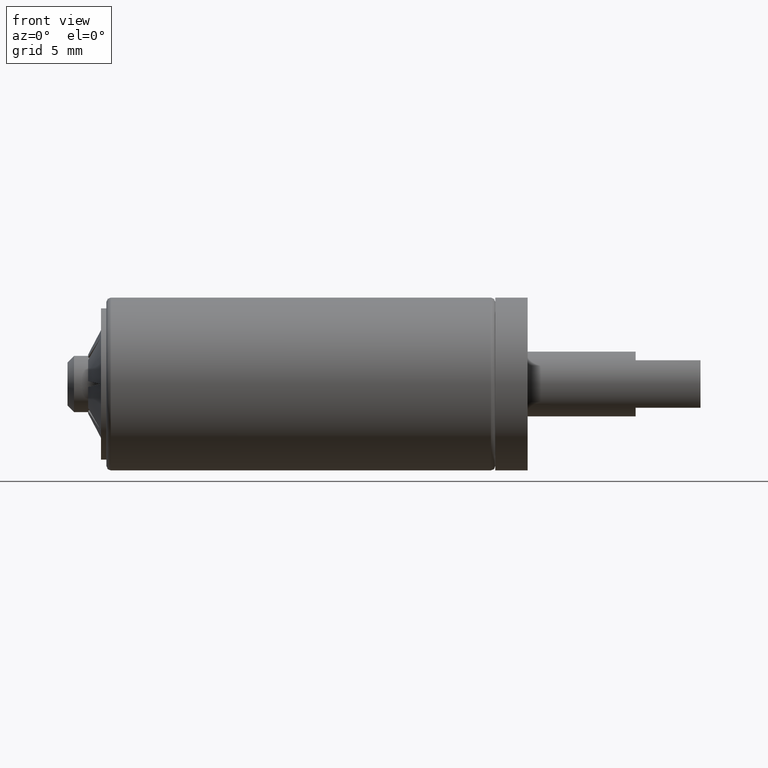
[diagram: clean part render]
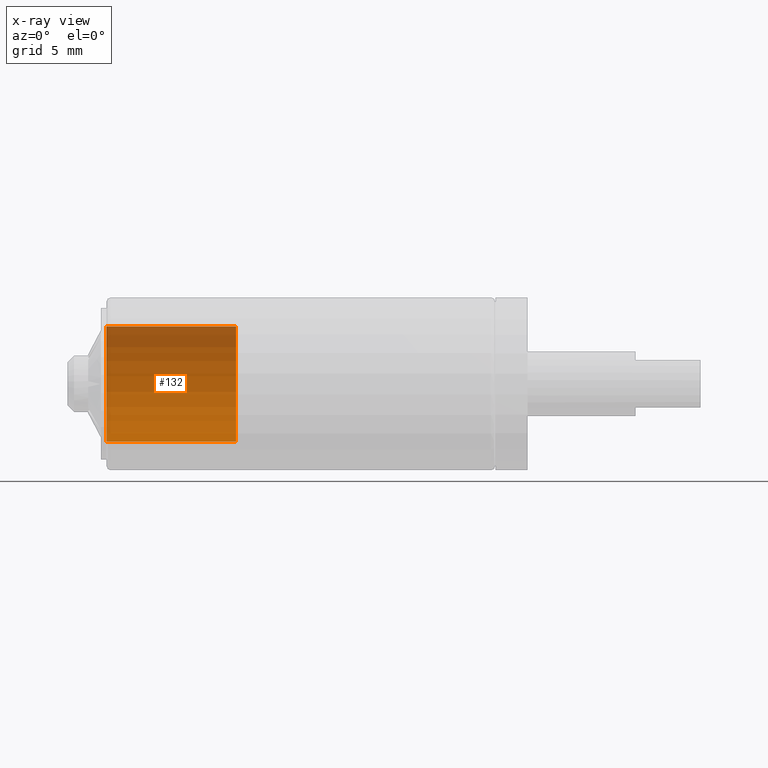
[diagram: x-ray — body ghosted, one internal face saturated and labeled with its STEP entity id]
A machine part, front view, then the same camera in x-ray: the body is ghosted and one INTERNAL B-rep face — a face not visible from any outside direction — is saturated and labeled: STEP entity #132.
In plain terms, the highlighted cylindrical surface (partial cylindrical patch) has radius 3 mm, axis along (-1, -0, -0).
Its self-contained STEP definition (entity closure, byte-faithful):
#132=ADVANCED_FACE('',(#1117),#1116,.F.);
#1116=CYLINDRICAL_SURFACE('',#2396,3.00000000000E+00);
#1117=FACE_OUTER_BOUND('',#2397,.T.);
#2393=CARTESIAN_POINT('',(-6.00000000000E+00,0.00000000000E+00,0.00000000000E+00));
#2394=DIRECTION('',(-1.00000000000E+00,-0.00000000000E+00,-0.00000000000E+00));
#2395=DIRECTION('',(-0.00000000000E+00,-0.00000000000E+00,1.00000000000E+00));
#2396=AXIS2_PLACEMENT_3D('',#2393,#2394,#2395);
#2397=EDGE_LOOP('',(#3205,#3206,#3207,#3208));
#3205=ORIENTED_EDGE('',*,*,#3836,.T.);
#3206=ORIENTED_EDGE('',*,*,#3648,.T.);
#3207=ORIENTED_EDGE('',*,*,#3837,.F.);
#3208=ORIENTED_EDGE('',*,*,#3838,.F.);
#3648=EDGE_CURVE('',#4601,#4594,#4602,.T.);
#3836=EDGE_CURVE('',#5853,#4601,#5854,.T.);
#3837=EDGE_CURVE('',#5860,#4594,#5861,.T.);
#3838=EDGE_CURVE('',#5853,#5860,#5867,.T.);
#4594=VERTEX_POINT('',#7057);
#4601=VERTEX_POINT('',#7062);
#4602=LINE('',#7063,#7064);
#5853=VERTEX_POINT('',#7873);
#5854=CIRCLE('',#7877,3.00000000000E+00);
#5860=VERTEX_POINT('',#7878);
#5861=CIRCLE('',#7882,3.00000000000E+00);
#5867=LINE('',#7883,#7884);
#7057=CARTESIAN_POINT('',(-9.00000000000E+00,1.38419650945E+00,2.66157848339E+00));
#7062=CARTESIAN_POINT('',(-3.00000000000E+00,1.38419650945E+00,2.66157848339E+00));
#7063=CARTESIAN_POINT('',(-3.00000000000E+00,1.38419650945E+00,2.66157848339E+00));
#7064=VECTOR('',#7065,6.00000000000E+00);
#7065=DIRECTION('',(-1.00000000000E+00,0.00000000000E+00,0.00000000000E+00));
#7873=CARTESIAN_POINT('',(-3.00000000000E+00,1.38419650945E+00,-2.66157848339E+00));
#7874=CARTESIAN_POINT('',(-3.00000000000E+00,0.00000000000E+00,0.00000000000E+00));
#7875=DIRECTION('',(1.00000000000E+00,0.00000000000E+00,0.00000000000E+00));
#7876=DIRECTION('',(-0.00000000000E+00,-4.61398836484E-01,8.87192827795E-01));
#7877=AXIS2_PLACEMENT_3D('',#7874,#7875,#7876);
#7878=CARTESIAN_POINT('',(-9.00000000000E+00,1.38419650945E+00,-2.66157848339E+00));
#7879=CARTESIAN_POINT('',(-9.00000000000E+00,0.00000000000E+00,0.00000000000E+00));
#7880=DIRECTION('',(1.00000000000E+00,0.00000000000E+00,0.00000000000E+00));
#7881=DIRECTION('',(-0.00000000000E+00,-4.61398836484E-01,8.87192827795E-01));
#7882=AXIS2_PLACEMENT_3D('',#7879,#7880,#7881);
#7883=CARTESIAN_POINT('',(-3.00000000000E+00,1.38419650945E+00,-2.66157848339E+00));
#7884=VECTOR('',#7885,6.00000000000E+00);
#7885=DIRECTION('',(-1.00000000000E+00,0.00000000000E+00,0.00000000000E+00));